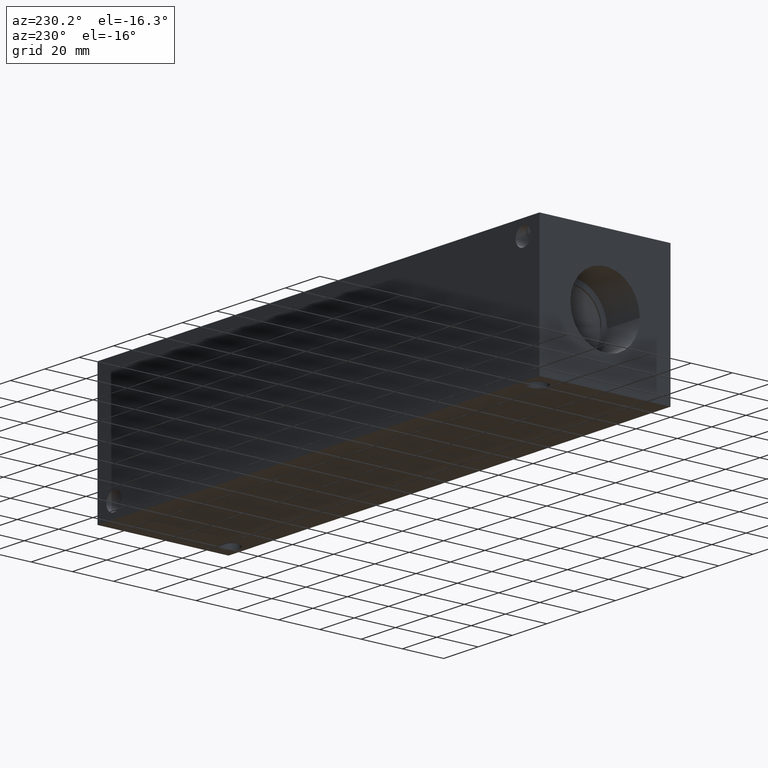
[diagram: clean part render]
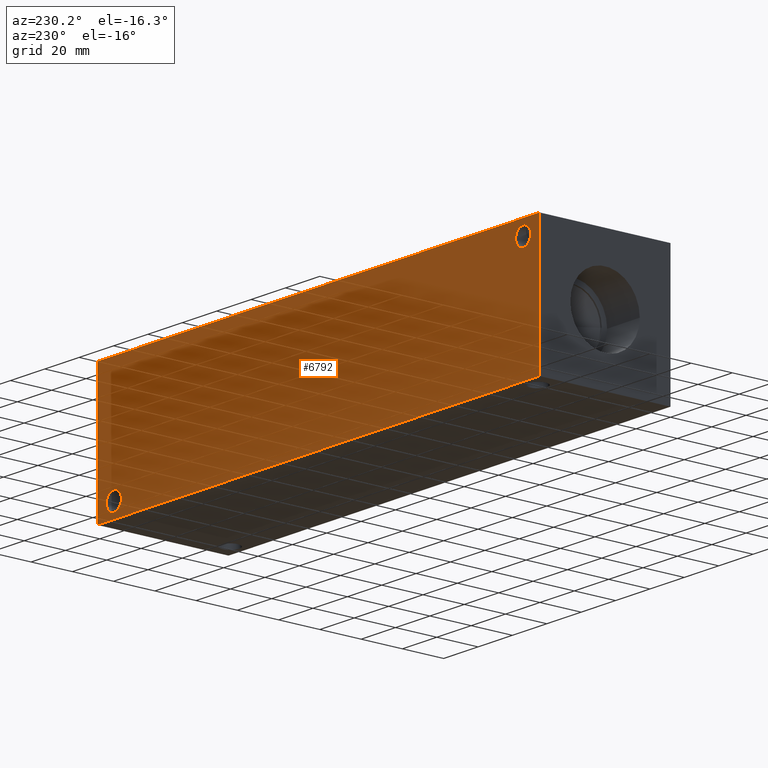
[diagram: same view with one face highlighted and labeled with its STEP entity id]
A machine part, auxiliary view. The second image highlights one B-rep face of the part: STEP entity #6792.
In plain terms, the highlighted planar face has unit normal (0, 1, 0).
Its self-contained STEP definition (entity closure, byte-faithful):
#57=CIRCLE('',#7041,4.3688);
#60=CIRCLE('',#7051,4.3688);
#130=FACE_BOUND('',#1076,.T.);
#131=FACE_BOUND('',#1077,.T.);
#355=PLANE('',#7107);
#696=FACE_OUTER_BOUND('',#1075,.T.);
#1075=EDGE_LOOP('',(#6032,#6033,#6034,#6035));
#1076=EDGE_LOOP('',(#6036));
#1077=EDGE_LOOP('',(#6037));
#1362=LINE('',#10444,#2047);
#1766=LINE('',#11519,#2451);
#1767=LINE('',#11522,#2452);
#1768=LINE('',#11523,#2453);
#2047=VECTOR('',#7535,10.);
#2451=VECTOR('',#8385,10.);
#2452=VECTOR('',#8388,10.);
#2453=VECTOR('',#8389,10.);
#2947=VERTEX_POINT('',#10441);
#2948=VERTEX_POINT('',#10443);
#3225=VERTEX_POINT('',#11385);
#3230=VERTEX_POINT('',#11403);
#3267=VERTEX_POINT('',#11515);
#3269=VERTEX_POINT('',#11521);
#3720=EDGE_CURVE('',#2947,#2948,#1362,.T.);
#4133=EDGE_CURVE('',#3225,#3225,#57,.T.);
#4143=EDGE_CURVE('',#3230,#3230,#60,.T.);
#4195=EDGE_CURVE('',#3267,#2948,#1766,.T.);
#4196=EDGE_CURVE('',#3269,#3267,#1767,.T.);
#4197=EDGE_CURVE('',#3269,#2947,#1768,.T.);
#6032=ORIENTED_EDGE('',*,*,#4196,.T.);
#6033=ORIENTED_EDGE('',*,*,#4195,.T.);
#6034=ORIENTED_EDGE('',*,*,#3720,.F.);
#6035=ORIENTED_EDGE('',*,*,#4197,.F.);
#6036=ORIENTED_EDGE('',*,*,#4133,.T.);
#6037=ORIENTED_EDGE('',*,*,#4143,.T.);
#6792=ADVANCED_FACE('',(#696,#130,#131),#355,.T.);
#7041=AXIS2_PLACEMENT_3D('',#11387,#8230,#8231);
#7051=AXIS2_PLACEMENT_3D('',#11405,#8253,#8254);
#7107=AXIS2_PLACEMENT_3D('',#11520,#8386,#8387);
#7535=DIRECTION('',(-1.,0.,0.));
#8230=DIRECTION('center_axis',(0.,-1.,0.));
#8231=DIRECTION('ref_axis',(1.,0.,0.));
#8253=DIRECTION('center_axis',(0.,-1.,0.));
#8254=DIRECTION('ref_axis',(1.,0.,0.));
#8385=DIRECTION('',(0.,0.,1.));
#8386=DIRECTION('center_axis',(0.,1.,0.));
#8387=DIRECTION('ref_axis',(-1.,0.,0.));
#8388=DIRECTION('',(-1.,0.,0.));
#8389=DIRECTION('',(0.,0.,1.));
#10441=CARTESIAN_POINT('',(257.175,63.5,63.5));
#10443=CARTESIAN_POINT('',(0.,63.5,63.5));
#10444=CARTESIAN_POINT('',(257.175,63.5,63.5));
#11385=CARTESIAN_POINT('',(243.2812,63.5,7.1374));
#11387=CARTESIAN_POINT('Origin',(247.65,63.5,7.1374));
#11403=CARTESIAN_POINT('',(5.1562,63.5,56.3626));
#11405=CARTESIAN_POINT('Origin',(9.525,63.5,56.3626));
#11515=CARTESIAN_POINT('',(0.,63.5,0.));
#11519=CARTESIAN_POINT('',(0.,63.5,0.));
#11520=CARTESIAN_POINT('Origin',(257.175,63.5,0.));
#11521=CARTESIAN_POINT('',(257.175,63.5,0.));
#11522=CARTESIAN_POINT('',(257.175,63.5,0.));
#11523=CARTESIAN_POINT('',(257.175,63.5,0.));